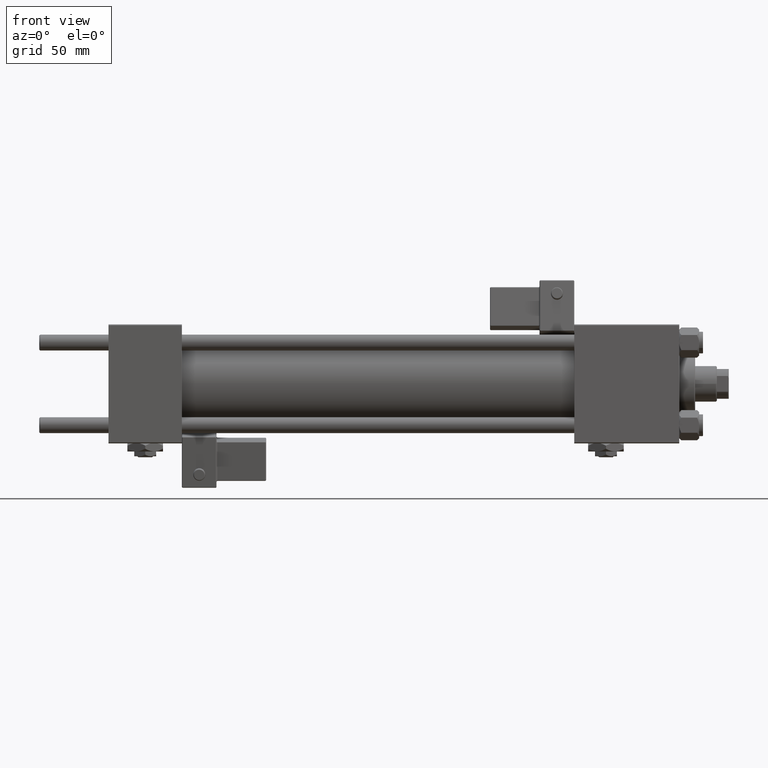
[diagram: clean part render]
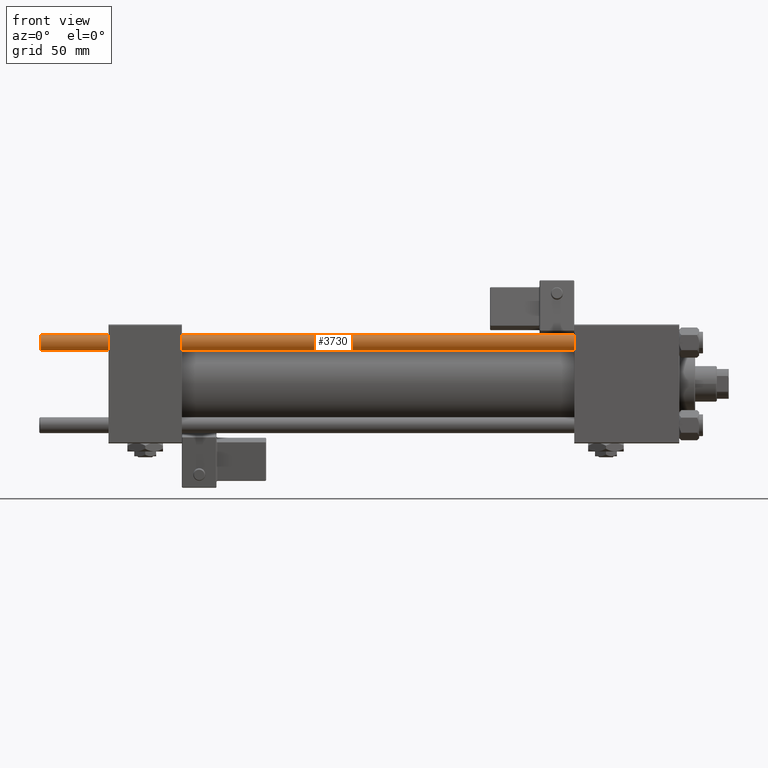
[diagram: same view with one face highlighted and labeled with its STEP entity id]
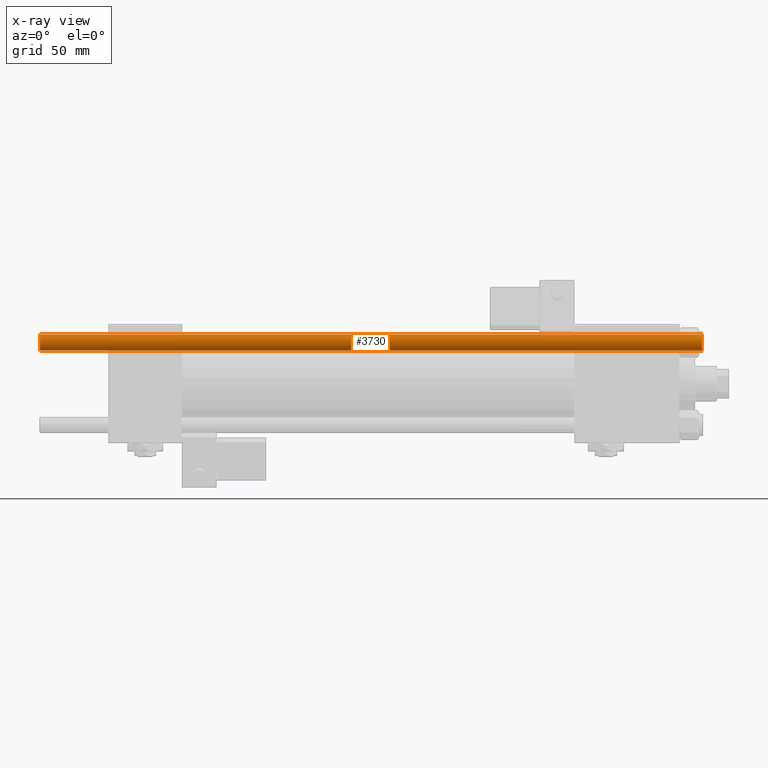
[diagram: x-ray of the same camera — body ghosted, the highlighted face saturated]
A machine part, front view. The second image highlights one B-rep face of the part: STEP entity #3730.
The next image is the same camera in x-ray: the body ghosted, the highlighted face saturated — about 0% of this face is hidden behind the body in this view.
In plain terms, the highlighted cylindrical surface (edge-blend (fillet) strip) has radius 4 mm, axis along (1, -0, 0).
Its self-contained STEP definition (entity closure, byte-faithful):
#3730 = ADVANCED_FACE ( 'NONE', ( #44505 ), #39331, .T. ) ;
#5892 = DIRECTION ( 'NONE',  ( 0.000000000000000000, 0.000000000000000000, -1.000000000000000000 ) ) ;
#6689 = ORIENTED_EDGE ( 'NONE', *, *, #31404, .F. ) ;
#8776 = LINE ( 'NONE', #29832, #11802 ) ;
#9953 = CIRCLE ( 'NONE', #28289, 4.000000000000000000 ) ;
#10897 = VERTEX_POINT ( 'NONE', #44476 ) ;
#11347 = VERTEX_POINT ( 'NONE', #28790 ) ;
#11802 = VECTOR ( 'NONE', #25704, 1000.000000000000000 ) ;
#12365 = CIRCLE ( 'NONE', #51707, 4.000000000000000000 ) ;
#12864 = CARTESIAN_POINT ( 'NONE',  ( 0.000000000000000000, 0.000000000000000000, 0.5000000000000559552 ) ) ;
#17954 = VECTOR ( 'NONE', #50981, 1000.000000000000000 ) ;
#21074 = VERTEX_POINT ( 'NONE', #39201 ) ;
#21077 = DIRECTION ( 'NONE',  ( -0.000000000000000000, -0.000000000000000000, 1.000000000000000000 ) ) ;
#23040 = EDGE_CURVE ( 'NONE', #10897, #21074, #9953, .T. ) ;
#23423 = CARTESIAN_POINT ( 'NONE',  ( 0.000000000000000000, 0.000000000000000000, 335.0000000000000000 ) ) ;
#25704 = DIRECTION ( 'NONE',  ( -0.000000000000000000, -0.000000000000000000, -1.000000000000000000 ) ) ;
#26203 = EDGE_CURVE ( 'NONE', #38508, #10897, #8776, .T. ) ;
#26736 = ORIENTED_EDGE ( 'NONE', *, *, #47370, .T. ) ;
#27221 = DIRECTION ( 'NONE',  ( 1.000000000000000000, 0.000000000000000000, 0.000000000000000000 ) ) ;
#28289 = AXIS2_PLACEMENT_3D ( 'NONE', #12864, #21077, #42430 ) ;
#28585 = CARTESIAN_POINT ( 'NONE',  ( 4.000000000000000000, 4.898587196589412829E-16, 334.5000000000000000 ) ) ;
#28790 = CARTESIAN_POINT ( 'NONE',  ( -4.000000000000000000, 0.000000000000000000, 334.5000000000000000 ) ) ;
#29397 = ORIENTED_EDGE ( 'NONE', *, *, #26203, .T. ) ;
#29832 = CARTESIAN_POINT ( 'NONE',  ( 4.000000000000000000, 4.898587196589412829E-16, 335.0000000000000000 ) ) ;
#31404 = EDGE_CURVE ( 'NONE', #11347, #21074, #38654, .T. ) ;
#34283 = CARTESIAN_POINT ( 'NONE',  ( -4.000000000000000000, 0.000000000000000000, 335.0000000000000000 ) ) ;
#38508 = VERTEX_POINT ( 'NONE', #28585 ) ;
#38654 = LINE ( 'NONE', #34283, #17954 ) ;
#39201 = CARTESIAN_POINT ( 'NONE',  ( -4.000000000000000000, 0.000000000000000000, 0.5000000000000559552 ) ) ;
#39331 = CYLINDRICAL_SURFACE ( 'NONE', #39946, 4.000000000000000000 ) ;
#39815 = CARTESIAN_POINT ( 'NONE',  ( 0.000000000000000000, 0.000000000000000000, 334.5000000000000000 ) ) ;
#39946 = AXIS2_PLACEMENT_3D ( 'NONE', #23423, #40129, #52728 ) ;
#40129 = DIRECTION ( 'NONE',  ( -0.000000000000000000, -0.000000000000000000, -1.000000000000000000 ) ) ;
#42430 = DIRECTION ( 'NONE',  ( 1.000000000000000000, 0.000000000000000000, 0.000000000000000000 ) ) ;
#43906 = ORIENTED_EDGE ( 'NONE', *, *, #23040, .T. ) ;
#44476 = CARTESIAN_POINT ( 'NONE',  ( 4.000000000000000000, 4.898587196589412829E-16, 0.5000000000000559552 ) ) ;
#44505 = FACE_OUTER_BOUND ( 'NONE', #46352, .T. ) ;
#46352 = EDGE_LOOP ( 'NONE', ( #26736, #29397, #43906, #6689 ) ) ;
#47370 = EDGE_CURVE ( 'NONE', #11347, #38508, #12365, .T. ) ;
#50981 = DIRECTION ( 'NONE',  ( -0.000000000000000000, -0.000000000000000000, -1.000000000000000000 ) ) ;
#51707 = AXIS2_PLACEMENT_3D ( 'NONE', #39815, #5892, #27221 ) ;
#52728 = DIRECTION ( 'NONE',  ( -1.000000000000000000, 0.000000000000000000, 0.000000000000000000 ) ) ;